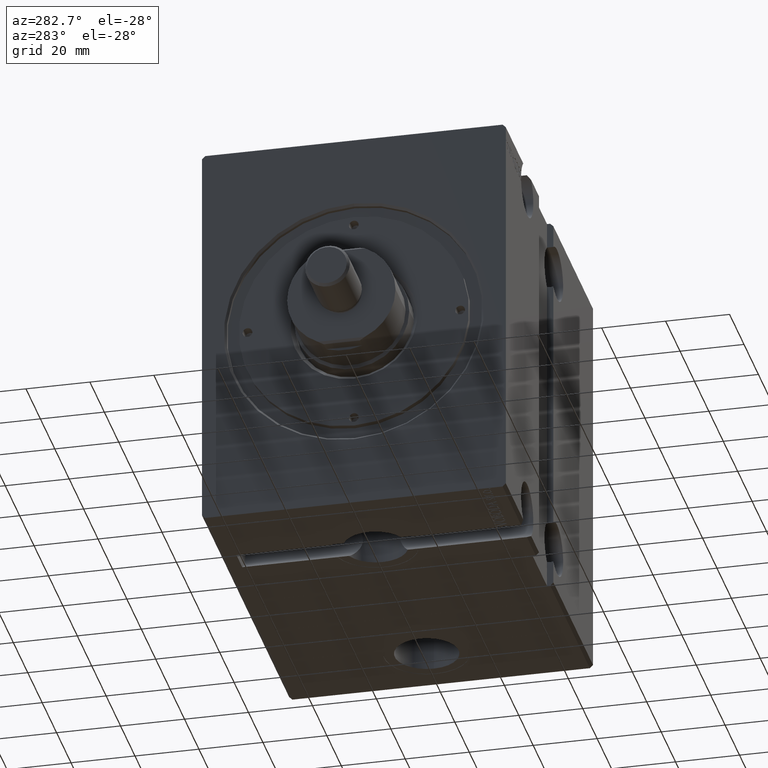
[diagram: clean part render]
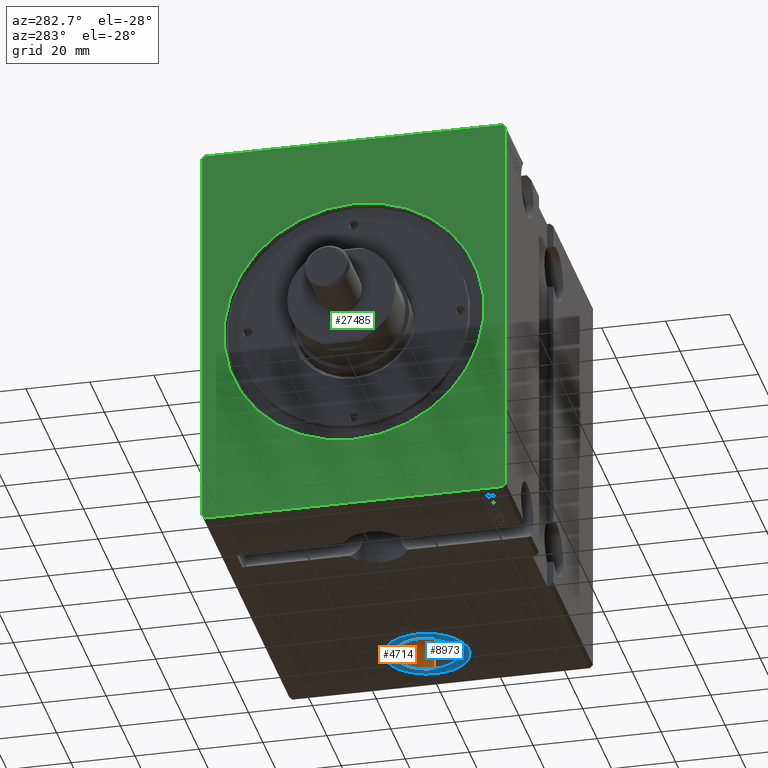
[diagram: same view with three faces highlighted in distinct colors, each labeled with its STEP entity id]
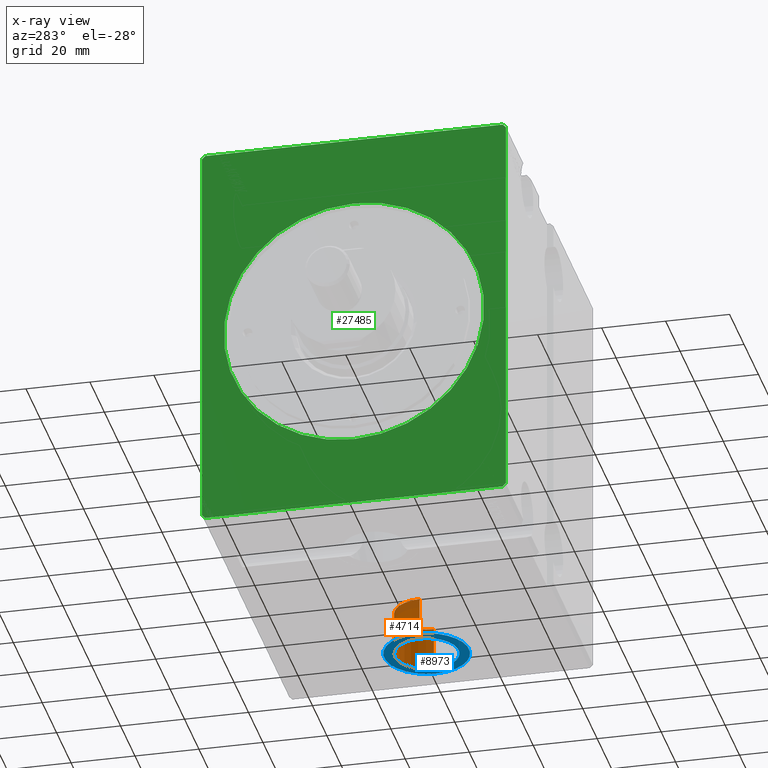
[diagram: x-ray of the same camera — body ghosted, the three highlighted faces saturated]
A machine part, auxiliary view with three faces highlighted in distinct colors.
The next image is the same camera in x-ray (body ghosted, the three faces saturated) — at least one of them is partly hidden behind the body in this view.
Their STEP definitions:

[orange] entity #4714 — the highlighted cylindrical surface (edge-blend (fillet) strip) has radius 10 mm, axis along (-0, -0, -1).
#346 = CIRCLE ( 'NONE', #16710, 9.999999999999994671 ) ;
#861 = CARTESIAN_POINT ( 'NONE',  ( 91.00000000000000000, -5.789088070571289040E-15, -62.39999999999999858 ) ) ;
#1254 = FACE_OUTER_BOUND ( 'NONE', #29015, .T. ) ;
#1477 = DIRECTION ( 'NONE',  ( -0.000000000000000000, -0.000000000000000000, -1.000000000000000000 ) ) ;
#1625 = ORIENTED_EDGE ( 'NONE', *, *, #38294, .F. ) ;
#2059 = EDGE_CURVE ( 'NONE', #9386, #23024, #346, .T. ) ;
#2775 = VERTEX_POINT ( 'NONE', #861 ) ;
#4588 = DIRECTION ( 'NONE',  ( -1.000000000000000000, 0.000000000000000000, 0.000000000000000000 ) ) ;
#4714 = ADVANCED_FACE ( 'NONE', ( #1254 ), #10500, .F. ) ;
#4822 = CARTESIAN_POINT ( 'NONE',  ( 110.9999999999999858, -4.564441271423936770E-15, -48.79999999999999716 ) ) ;
#5943 = CARTESIAN_POINT ( 'NONE',  ( 91.00000000000000000, -5.789088070571289040E-15, -48.79999999999999716 ) ) ;
#6399 = CARTESIAN_POINT ( 'NONE',  ( 100.9999999999999858, -5.789088070571289040E-15, -62.39999999999999858 ) ) ;
#8547 = VECTOR ( 'NONE', #1477, 1000.000000000000000 ) ;
#9386 = VERTEX_POINT ( 'NONE', #5943 ) ;
#9520 = CARTESIAN_POINT ( 'NONE',  ( 100.9999999999999858, -5.789088070571289040E-15, -48.79999999999999716 ) ) ;
#10500 = CYLINDRICAL_SURFACE ( 'NONE', #12664, 9.999999999999994671 ) ;
#10913 = LINE ( 'NONE', #14063, #13539 ) ;
#12664 = AXIS2_PLACEMENT_3D ( 'NONE', #25258, #37265, #4588 ) ;
#13539 = VECTOR ( 'NONE', #17206, 1000.000000000000000 ) ;
#13883 = LINE ( 'NONE', #4822, #8547 ) ;
#14063 = CARTESIAN_POINT ( 'NONE',  ( 91.00000000000000000, -5.789088070571289040E-15, -48.79999999999999716 ) ) ;
#15465 = DIRECTION ( 'NONE',  ( 0.000000000000000000, 0.000000000000000000, -1.000000000000000000 ) ) ;
#16710 = AXIS2_PLACEMENT_3D ( 'NONE', #9520, #18381, #30365 ) ;
#17197 = CARTESIAN_POINT ( 'NONE',  ( 110.9999999999999858, -4.564441271423936770E-15, -48.79999999999999716 ) ) ;
#17206 = DIRECTION ( 'NONE',  ( -0.000000000000000000, -0.000000000000000000, -1.000000000000000000 ) ) ;
#17955 = EDGE_CURVE ( 'NONE', #9386, #2775, #10913, .T. ) ;
#18381 = DIRECTION ( 'NONE',  ( 0.000000000000000000, 0.000000000000000000, -1.000000000000000000 ) ) ;
#19305 = CARTESIAN_POINT ( 'NONE',  ( 110.9999999999999858, -4.564441271423936770E-15, -62.39999999999999858 ) ) ;
#22761 = EDGE_CURVE ( 'NONE', #2775, #36603, #26283, .T. ) ;
#23024 = VERTEX_POINT ( 'NONE', #17197 ) ;
#23768 = AXIS2_PLACEMENT_3D ( 'NONE', #6399, #15465, #33346 ) ;
#25258 = CARTESIAN_POINT ( 'NONE',  ( 100.9999999999999858, -5.789088070571289040E-15, -48.79999999999999716 ) ) ;
#26283 = CIRCLE ( 'NONE', #23768, 9.999999999999994671 ) ;
#26736 = ORIENTED_EDGE ( 'NONE', *, *, #2059, .F. ) ;
#27756 = ORIENTED_EDGE ( 'NONE', *, *, #17955, .T. ) ;
#29015 = EDGE_LOOP ( 'NONE', ( #1625, #26736, #27756, #34956 ) ) ;
#30365 = DIRECTION ( 'NONE',  ( -1.000000000000000000, 0.000000000000000000, 0.000000000000000000 ) ) ;
#33346 = DIRECTION ( 'NONE',  ( -1.000000000000000000, 0.000000000000000000, 0.000000000000000000 ) ) ;
#34956 = ORIENTED_EDGE ( 'NONE', *, *, #22761, .T. ) ;
#36603 = VERTEX_POINT ( 'NONE', #19305 ) ;
#37265 = DIRECTION ( 'NONE',  ( -0.000000000000000000, -0.000000000000000000, -1.000000000000000000 ) ) ;
#38294 = EDGE_CURVE ( 'NONE', #23024, #36603, #13883, .T. ) ;

[blue] entity #8973 — the highlighted planar face has unit normal (0, 0, -1).
#326 = CIRCLE ( 'NONE', #22345, 9.999999999999994671 ) ;
#861 = CARTESIAN_POINT ( 'NONE',  ( 91.00000000000000000, -5.789088070571289040E-15, -62.39999999999999858 ) ) ;
#2775 = VERTEX_POINT ( 'NONE', #861 ) ;
#2882 = EDGE_LOOP ( 'NONE', ( #25131, #6260 ) ) ;
#3508 = DIRECTION ( 'NONE',  ( 0.000000000000000000, 0.000000000000000000, -1.000000000000000000 ) ) ;
#5269 = FACE_OUTER_BOUND ( 'NONE', #6890, .T. ) ;
#5992 = DIRECTION ( 'NONE',  ( -1.000000000000000000, 0.000000000000000000, -0.000000000000000000 ) ) ;
#6260 = ORIENTED_EDGE ( 'NONE', *, *, #29600, .F. ) ;
#6399 = CARTESIAN_POINT ( 'NONE',  ( 100.9999999999999858, -5.789088070571289040E-15, -62.39999999999999858 ) ) ;
#6462 = DIRECTION ( 'NONE',  ( -1.000000000000000000, 0.000000000000000000, 0.000000000000000000 ) ) ;
#6793 = DIRECTION ( 'NONE',  ( -1.000000000000000000, 0.000000000000000000, 0.000000000000000000 ) ) ;
#6890 = EDGE_LOOP ( 'NONE', ( #15013, #20620 ) ) ;
#8202 = AXIS2_PLACEMENT_3D ( 'NONE', #30177, #32940, #5992 ) ;
#8938 = FACE_BOUND ( 'NONE', #2882, .T. ) ;
#8973 = ADVANCED_FACE ( 'NONE', ( #8938, #5269 ), #29991, .T. ) ;
#9275 = CIRCLE ( 'NONE', #21865, 13.24999999999999822 ) ;
#12196 = CIRCLE ( 'NONE', #26019, 13.24999999999999822 ) ;
#14272 = EDGE_CURVE ( 'NONE', #31778, #24742, #12196, .T. ) ;
#15013 = ORIENTED_EDGE ( 'NONE', *, *, #21789, .T. ) ;
#15465 = DIRECTION ( 'NONE',  ( 0.000000000000000000, 0.000000000000000000, -1.000000000000000000 ) ) ;
#17844 = CARTESIAN_POINT ( 'NONE',  ( 100.9999999999999858, -5.789088070571289040E-15, -62.39999999999999858 ) ) ;
#19305 = CARTESIAN_POINT ( 'NONE',  ( 110.9999999999999858, -4.564441271423936770E-15, -62.39999999999999858 ) ) ;
#20620 = ORIENTED_EDGE ( 'NONE', *, *, #14272, .T. ) ;
#21789 = EDGE_CURVE ( 'NONE', #24742, #31778, #9275, .T. ) ;
#21865 = AXIS2_PLACEMENT_3D ( 'NONE', #33744, #31182, #6793 ) ;
#22345 = AXIS2_PLACEMENT_3D ( 'NONE', #33029, #3508, #6462 ) ;
#22761 = EDGE_CURVE ( 'NONE', #2775, #36603, #26283, .T. ) ;
#23768 = AXIS2_PLACEMENT_3D ( 'NONE', #6399, #15465, #33346 ) ;
#24742 = VERTEX_POINT ( 'NONE', #33797 ) ;
#25131 = ORIENTED_EDGE ( 'NONE', *, *, #22761, .F. ) ;
#26019 = AXIS2_PLACEMENT_3D ( 'NONE', #17844, #26899, #38503 ) ;
#26283 = CIRCLE ( 'NONE', #23768, 9.999999999999994671 ) ;
#26899 = DIRECTION ( 'NONE',  ( 0.000000000000000000, 0.000000000000000000, -1.000000000000000000 ) ) ;
#29600 = EDGE_CURVE ( 'NONE', #36603, #2775, #326, .T. ) ;
#29991 = PLANE ( 'NONE',  #8202 ) ;
#30177 = CARTESIAN_POINT ( 'NONE',  ( 100.9999999999999858, -5.789088070571289040E-15, -62.39999999999999858 ) ) ;
#31182 = DIRECTION ( 'NONE',  ( 0.000000000000000000, 0.000000000000000000, -1.000000000000000000 ) ) ;
#31778 = VERTEX_POINT ( 'NONE', #38418 ) ;
#32940 = DIRECTION ( 'NONE',  ( 0.000000000000000000, 0.000000000000000000, -1.000000000000000000 ) ) ;
#33029 = CARTESIAN_POINT ( 'NONE',  ( 100.9999999999999858, -5.789088070571289040E-15, -62.39999999999999858 ) ) ;
#33346 = DIRECTION ( 'NONE',  ( -1.000000000000000000, 0.000000000000000000, 0.000000000000000000 ) ) ;
#33744 = CARTESIAN_POINT ( 'NONE',  ( 100.9999999999999858, -5.789088070571289040E-15, -62.39999999999999858 ) ) ;
#33797 = CARTESIAN_POINT ( 'NONE',  ( 87.75000000000000000, -5.789088070571289040E-15, -62.39999999999999858 ) ) ;
#36603 = VERTEX_POINT ( 'NONE', #19305 ) ;
#38418 = CARTESIAN_POINT ( 'NONE',  ( 114.2499999999999858, -4.166431061701045172E-15, -62.39999999999999858 ) ) ;
#38503 = DIRECTION ( 'NONE',  ( -1.000000000000000000, 0.000000000000000000, 0.000000000000000000 ) ) ;

[green] entity #27485 — the highlighted planar face has unit normal (1, 0, 0).
#20 = CARTESIAN_POINT ( 'NONE',  ( 0.000000000000000000, -47.50000000000001421, 61.49999999999997868 ) ) ;
#176 = DIRECTION ( 'NONE',  ( 0.000000000000000000, 0.000000000000000000, -1.000000000000000000 ) ) ;
#372 = CARTESIAN_POINT ( 'NONE',  ( 0.000000000000000000, 0.000000000000000000, 0.000000000000000000 ) ) ;
#422 = DIRECTION ( 'NONE',  ( 0.000000000000000000, 0.000000000000000000, -1.000000000000000000 ) ) ;
#684 = CARTESIAN_POINT ( 'NONE',  ( 0.000000000000000000, 46.50000000000000000, -62.50000000000000000 ) ) ;
#2051 = VECTOR ( 'NONE', #18719, 1000.000000000000000 ) ;
#2170 = CARTESIAN_POINT ( 'NONE',  ( 0.000000000000000000, -47.50000000000001421, 61.49999999999997868 ) ) ;
#2885 = VECTOR ( 'NONE', #26615, 1000.000000000000000 ) ;
#2982 = CARTESIAN_POINT ( 'NONE',  ( 0.000000000000000000, -46.50000000000001421, 62.49999999999997868 ) ) ;
#3014 = LINE ( 'NONE', #30342, #13739 ) ;
#3307 = EDGE_CURVE ( 'NONE', #18757, #19816, #6140, .T. ) ;
#3367 = CARTESIAN_POINT ( 'NONE',  ( 0.000000000000000000, -46.50000000000001421, 62.49999999999997868 ) ) ;
#3471 = VECTOR ( 'NONE', #20847, 1000.000000000000000 ) ;
#4236 = CARTESIAN_POINT ( 'NONE',  ( 0.000000000000000000, 46.50000000000000000, -62.50000000000000000 ) ) ;
#5823 = CARTESIAN_POINT ( 'NONE',  ( 0.000000000000000000, 0.000000000000000000, 0.000000000000000000 ) ) ;
#6140 = CIRCLE ( 'NONE', #8646, 40.70000000000001705 ) ;
#8384 = FACE_OUTER_BOUND ( 'NONE', #23888, .T. ) ;
#8646 = AXIS2_PLACEMENT_3D ( 'NONE', #372, #9223, #176 ) ;
#9153 = LINE ( 'NONE', #684, #22823 ) ;
#9223 = DIRECTION ( 'NONE',  ( 1.000000000000000000, 0.000000000000000000, 0.000000000000000000 ) ) ;
#9268 = DIRECTION ( 'NONE',  ( 1.000000000000000000, 0.000000000000000000, 0.000000000000000000 ) ) ;
#10044 = ORIENTED_EDGE ( 'NONE', *, *, #31796, .F. ) ;
#10333 = CIRCLE ( 'NONE', #28561, 40.70000000000001705 ) ;
#10983 = EDGE_CURVE ( 'NONE', #27703, #25508, #9153, .T. ) ;
#11251 = EDGE_CURVE ( 'NONE', #16039, #36751, #30309, .T. ) ;
#11666 = CARTESIAN_POINT ( 'NONE',  ( 0.000000000000000000, 47.50000000000001421, -61.50000000000001421 ) ) ;
#11791 = CARTESIAN_POINT ( 'NONE',  ( 0.000000000000000000, 46.50000000000000000, 62.49999999999998579 ) ) ;
#11858 = CARTESIAN_POINT ( 'NONE',  ( 0.000000000000000000, 47.50000000000001421, -61.50000000000001421 ) ) ;
#11905 = CARTESIAN_POINT ( 'NONE',  ( 0.000000000000000000, 47.50000000000000000, 61.49999999999998579 ) ) ;
#11984 = CARTESIAN_POINT ( 'NONE',  ( 0.000000000000000000, -46.50000000000000000, -62.50000000000001421 ) ) ;
#13192 = ORIENTED_EDGE ( 'NONE', *, *, #3307, .T. ) ;
#13739 = VECTOR ( 'NONE', #21706, 1000.000000000000114 ) ;
#14610 = LINE ( 'NONE', #11858, #2885 ) ;
#15006 = ORIENTED_EDGE ( 'NONE', *, *, #29628, .F. ) ;
#16039 = VERTEX_POINT ( 'NONE', #2170 ) ;
#16663 = EDGE_CURVE ( 'NONE', #18542, #27703, #17001, .T. ) ;
#17001 = LINE ( 'NONE', #38816, #23566 ) ;
#17249 = DIRECTION ( 'NONE',  ( 1.000000000000000000, 0.000000000000000000, 0.000000000000000000 ) ) ;
#17937 = VECTOR ( 'NONE', #38588, 1000.000000000000114 ) ;
#18542 = VERTEX_POINT ( 'NONE', #11984 ) ;
#18719 = DIRECTION ( 'NONE',  ( 0.000000000000000000, 1.692413147294445970E-16, -1.000000000000000000 ) ) ;
#18757 = VERTEX_POINT ( 'NONE', #26840 ) ;
#18987 = VERTEX_POINT ( 'NONE', #27383 ) ;
#19116 = EDGE_CURVE ( 'NONE', #19816, #18757, #10333, .T. ) ;
#19136 = VERTEX_POINT ( 'NONE', #3367 ) ;
#19816 = VERTEX_POINT ( 'NONE', #27297 ) ;
#20010 = ORIENTED_EDGE ( 'NONE', *, *, #31615, .F. ) ;
#20119 = LINE ( 'NONE', #2982, #17937 ) ;
#20847 = DIRECTION ( 'NONE',  ( 0.000000000000000000, -1.000000000000000000, -7.461176240760460157E-17 ) ) ;
#21706 = DIRECTION ( 'NONE',  ( 0.000000000000000000, 0.7071067811865451302, -0.7071067811865500152 ) ) ;
#22805 = ORIENTED_EDGE ( 'NONE', *, *, #10983, .F. ) ;
#22823 = VECTOR ( 'NONE', #30779, 999.9999999999998863 ) ;
#23000 = VERTEX_POINT ( 'NONE', #24897 ) ;
#23207 = EDGE_CURVE ( 'NONE', #36751, #18542, #3014, .T. ) ;
#23549 = DIRECTION ( 'NONE',  ( 0.000000000000000000, 0.000000000000000000, -1.000000000000000000 ) ) ;
#23566 = VECTOR ( 'NONE', #35866, 1000.000000000000000 ) ;
#23610 = CARTESIAN_POINT ( 'NONE',  ( 0.000000000000000000, -47.49999999999999289, -61.50000000000001421 ) ) ;
#23888 = EDGE_LOOP ( 'NONE', ( #20010, #10044, #22805, #25133, #33930, #34122, #25669, #15006 ) ) ;
#24679 = DIRECTION ( 'NONE',  ( 0.000000000000000000, -0.7071067811865474617, 0.7071067811865474617 ) ) ;
#24897 = CARTESIAN_POINT ( 'NONE',  ( 0.000000000000000000, 47.50000000000000000, 61.49999999999998579 ) ) ;
#25133 = ORIENTED_EDGE ( 'NONE', *, *, #16663, .F. ) ;
#25508 = VERTEX_POINT ( 'NONE', #11666 ) ;
#25669 = ORIENTED_EDGE ( 'NONE', *, *, #36471, .F. ) ;
#26490 = FACE_BOUND ( 'NONE', #31079, .T. ) ;
#26615 = DIRECTION ( 'NONE',  ( 0.000000000000000000, -1.128275431529630729E-16, 1.000000000000000000 ) ) ;
#26743 = LINE ( 'NONE', #11791, #3471 ) ;
#26840 = CARTESIAN_POINT ( 'NONE',  ( 0.000000000000000000, 4.984312472529728892E-15, -40.70000000000001705 ) ) ;
#27297 = CARTESIAN_POINT ( 'NONE',  ( 0.000000000000000000, 0.000000000000000000, 40.70000000000001705 ) ) ;
#27383 = CARTESIAN_POINT ( 'NONE',  ( 0.000000000000000000, 46.50000000000000000, 62.49999999999998579 ) ) ;
#27485 = ADVANCED_FACE ( 'NONE', ( #26490, #8384 ), #35342, .F. ) ;
#27703 = VERTEX_POINT ( 'NONE', #4236 ) ;
#28006 = VECTOR ( 'NONE', #24679, 1000.000000000000114 ) ;
#28561 = AXIS2_PLACEMENT_3D ( 'NONE', #36232, #9268, #422 ) ;
#29628 = EDGE_CURVE ( 'NONE', #18987, #19136, #26743, .T. ) ;
#30309 = LINE ( 'NONE', #20, #2051 ) ;
#30342 = CARTESIAN_POINT ( 'NONE',  ( 0.000000000000000000, -47.49999999999999289, -61.50000000000001421 ) ) ;
#30779 = DIRECTION ( 'NONE',  ( 0.000000000000000000, 0.7071067811865574537, 0.7071067811865376918 ) ) ;
#31079 = EDGE_LOOP ( 'NONE', ( #34474, #13192 ) ) ;
#31615 = EDGE_CURVE ( 'NONE', #23000, #18987, #38858, .T. ) ;
#31796 = EDGE_CURVE ( 'NONE', #25508, #23000, #14610, .T. ) ;
#33930 = ORIENTED_EDGE ( 'NONE', *, *, #23207, .F. ) ;
#34122 = ORIENTED_EDGE ( 'NONE', *, *, #11251, .F. ) ;
#34474 = ORIENTED_EDGE ( 'NONE', *, *, #19116, .T. ) ;
#35342 = PLANE ( 'NONE',  #37008 ) ;
#35866 = DIRECTION ( 'NONE',  ( 0.000000000000000000, 1.000000000000000000, 1.492235248152092278E-16 ) ) ;
#36232 = CARTESIAN_POINT ( 'NONE',  ( 0.000000000000000000, 0.000000000000000000, 0.000000000000000000 ) ) ;
#36471 = EDGE_CURVE ( 'NONE', #19136, #16039, #20119, .T. ) ;
#36751 = VERTEX_POINT ( 'NONE', #23610 ) ;
#37008 = AXIS2_PLACEMENT_3D ( 'NONE', #5823, #17249, #23549 ) ;
#38588 = DIRECTION ( 'NONE',  ( 0.000000000000000000, -0.7071067811865474617, -0.7071067811865474617 ) ) ;
#38816 = CARTESIAN_POINT ( 'NONE',  ( 0.000000000000000000, -46.50000000000000000, -62.50000000000001421 ) ) ;
#38858 = LINE ( 'NONE', #11905, #28006 ) ;